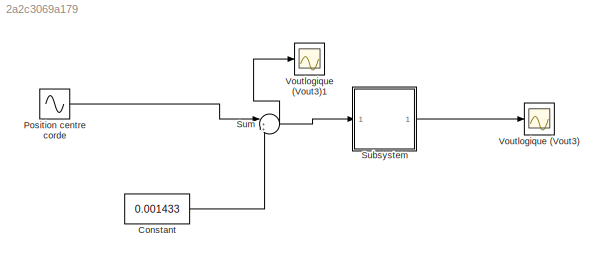
MODEL slx_2a2c3069a179
KIND model
CONFIG AbsTol = auto
CONFIG EnableMultiTasking = off
CONFIG FixedStep = 0.0001
CONFIG MaxStep = auto
CONFIG MinStep = auto
CONFIG RelTol = 1e-3
CONFIG SampleTimeConstraint = Unconstrained
CONFIG Solver = FixedStepAuto
CONFIG SolverName = FixedStepAuto
CONFIG StartTime = 0.0
CONFIG StopTime = 1
BLOCK [Constant] Constant
  Value = 0.001433
BLOCK [Sin] Position centre corde
  Amplitude = 0.0005
  Frequency = 1256
  Ports = [0, 1]
  SampleTime = 0
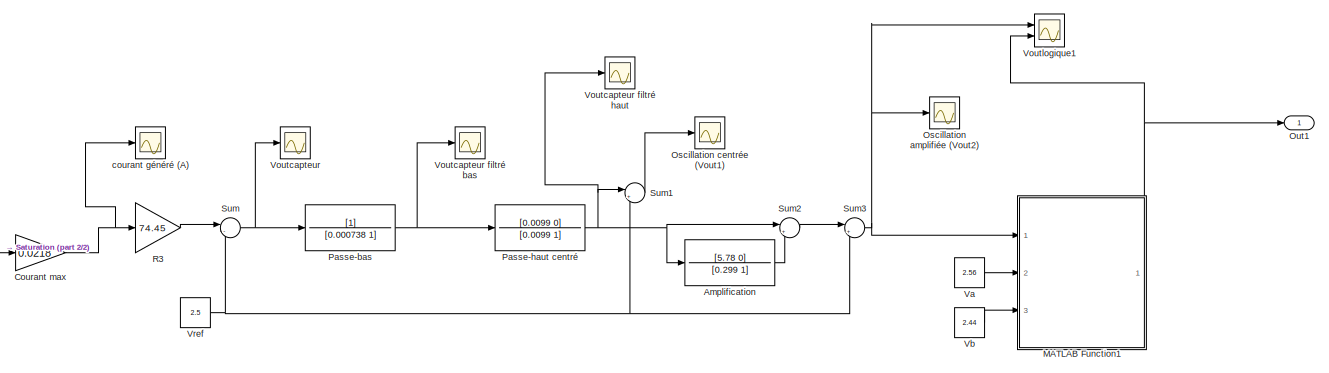
[diagram: Subsystem - part 1/2, most of the canvas]
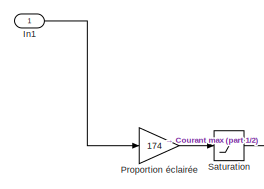
[diagram: Subsystem - part 2/2, middle left region]
BLOCK [SubSystem] Subsystem
  Ports = [1, 1]
  RequestExecContextInheritance = off
BLOCK [TransferFcn] Subsystem/Amplification 
  Denominator = [0.299 1]
  Numerator = [5.78 0]
BLOCK [Gain] Subsystem/Courant max
  Gain = 0.0218
  OutDataTypeStr = Inherit: Inherit via internal rule
  ParamDataTypeStr = Inherit: Inherit via internal rule
  SaturateOnIntegerOverflow = off
BLOCK [Inport] Subsystem/In1
  IconDisplay = Port number
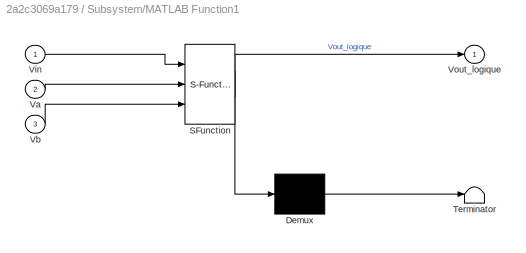
BLOCK [SubSystem] Subsystem/MATLAB Function1
  ErrorFcn = Stateflow.Translate.translate
  PermitHierarchicalResolution = ExplicitOnly
  Ports = [3, 1]
  RequestExecContextInheritance = off
  SFBlockType = MATLAB Function
  TreatAsAtomicUnit = on
BLOCK [Demux] Subsystem/MATLAB Function1/ Demux 
  Outputs = 1
  Ports = [1, 1]
BLOCK [S-Function] Subsystem/MATLAB Function1/ SFunction 
  EnableBusSupport = on
  FunctionName = sf_sfun
  PortCounts = [3 2]
  Ports = [3, 2]
  SFcnIsStateOwnerBlock = off
  SFunctionDeploymentMode = off
  Tag = Stateflow S-Function 1
BLOCK [Terminator] Subsystem/MATLAB Function1/ Terminator 
BLOCK [Inport] Subsystem/MATLAB Function1/Va
  IconDisplay = Port number
  Port = 2
BLOCK [Inport] Subsystem/MATLAB Function1/Vb
  IconDisplay = Port number
  Port = 3
BLOCK [Inport] Subsystem/MATLAB Function1/Vin
  IconDisplay = Port number
BLOCK [Outport] Subsystem/MATLAB Function1/Vout_logique
  IconDisplay = Port number
BLOCK [Scope] Subsystem/Oscillation amplifiée (Vout2) 
  Floating = off
  NumInputPorts = 1
  Ports = [1]
  ScopeSpecificationString = Simulink.scopes.TimeScopeBlockCfg('CurrentConfiguration', extmgr.ConfigurationSet(extmgr.Configuration('Core','General UI',true),extmgr.Configuration('Core','Source UI',true),extmgr.Configuration('Sources','WiredSimulink',true,'DataLoggingVariableName','ScopeData4'),extmgr.Configuration('Visuals','Time Domain',true,'SerializedDisplays',{struct('MinYLimReal','1.62987','MaxYLimReal','2.585','YLabelR...<+1448ch>
BLOCK [Scope] Subsystem/Oscillation centrée (Vout1)
  Floating = off
  NumInputPorts = 1
  Ports = [1]
  ScopeSpecificationString = Simulink.scopes.TimeScopeBlockCfg('CurrentConfiguration', extmgr.ConfigurationSet(extmgr.Configuration('Core','General UI',true),extmgr.Configuration('Core','Source UI',true),extmgr.Configuration('Sources','WiredSimulink',true,'DataLoggingVariableName','ScopeData3'),extmgr.Configuration('Visuals','Time Domain',true,'SerializedDisplays',{struct('MinYLimReal','1.91929','MaxYLimReal','4.7031','YLabel...<+1428ch>
BLOCK [Outport] Subsystem/Out1
  IconDisplay = Port number
BLOCK [TransferFcn] Subsystem/Passe-bas
  Denominator = [0.000738 1]
BLOCK [TransferFcn] Subsystem/Passe-haut centré 
  Denominator = [0.0099 1]
  Numerator = [0.0099 0]
BLOCK [Gain] Subsystem/Proportion éclairée
  Gain = 174
  OutDataTypeStr = Inherit: Inherit via internal rule
  ParamDataTypeStr = Inherit: Inherit via internal rule
  SaturateOnIntegerOverflow = off
BLOCK [Gain] Subsystem/R3
  Gain = 74.45
  OutDataTypeStr = Inherit: Inherit via internal rule
  ParamDataTypeStr = Inherit: Inherit via internal rule
  SaturateOnIntegerOverflow = off
BLOCK [Saturate] Subsystem/Saturation
  InputPortMap = u0
  LowerLimit = 0
  Ports = [1, 1]
  UpperLimit = 0.497
BLOCK [Sum] Subsystem/Sum
  IconShape = round
  InputSameDT = off
  Inputs = |-+
  OutDataTypeStr = Inherit: Inherit via internal rule
  Ports = [2, 1]
  SaturateOnIntegerOverflow = off
BLOCK [Sum] Subsystem/Sum1
  IconShape = round
  InputSameDT = off
  Inputs = |++
  OutDataTypeStr = Inherit: Inherit via internal rule
  Ports = [2, 1]
  SaturateOnIntegerOverflow = off
BLOCK [Sum] Subsystem/Sum2
  IconShape = round
  InputSameDT = off
  Inputs = |++
  OutDataTypeStr = Inherit: Inherit via internal rule
  Ports = [2, 1]
  SaturateOnIntegerOverflow = off
BLOCK [Sum] Subsystem/Sum3
  IconShape = round
  InputSameDT = off
  Inputs = |++
  OutDataTypeStr = Inherit: Inherit via internal rule
  Ports = [2, 1]
  SaturateOnIntegerOverflow = off
BLOCK [Constant] Subsystem/Va 
  Value = 2.56
BLOCK [Constant] Subsystem/Vb
  Value = 2.44
BLOCK [Scope] Subsystem/Voutcapteur 
  Floating = off
  NumInputPorts = 1
  Ports = [1]
  ScopeSpecificationString = Simulink.scopes.TimeScopeBlockCfg('CurrentConfiguration', extmgr.ConfigurationSet(extmgr.Configuration('Core','General UI',true,'ShowMainToolbar',false,'ShowStatusbar',false),extmgr.Configuration('Core','Source UI',true),extmgr.Configuration('Sources','WiredSimulink',true,'DataLoggingVariableName','ScopeData2'),extmgr.Configuration('Visuals','Time Domain',true,'SerializedDisplays',{struct('MinYLim...<+1622ch>
BLOCK [Scope] Subsystem/Voutcapteur filtré bas
  Floating = off
  NumInputPorts = 1
  Ports = [1]
  ScopeSpecificationString = Simulink.scopes.TimeScopeBlockCfg('CurrentConfiguration', extmgr.ConfigurationSet(extmgr.Configuration('Core','General UI',true),extmgr.Configuration('Core','Source UI',true),extmgr.Configuration('Sources','WiredSimulink',true,'DataLoggingVariableName','ScopeData1'),extmgr.Configuration('Visuals','Time Domain',true,'SerializedDisplays',{struct('MinYLimReal','-0.30187','MaxYLimReal','2.71681','YLab...<+1481ch>
BLOCK [Scope] Subsystem/Voutcapteur filtré haut
  Floating = off
  NumInputPorts = 1
  Ports = [1]
  ScopeSpecificationString = Simulink.scopes.TimeScopeBlockCfg('CurrentConfiguration', extmgr.ConfigurationSet(extmgr.Configuration('Core','General UI',true),extmgr.Configuration('Core','Source UI',true),extmgr.Configuration('Sources','WiredSimulink',true,'DataLoggingVariableName','ScopeData2'),extmgr.Configuration('Visuals','Time Domain',true,'SerializedDisplays',{struct('MinYLimReal','-0.0776','MaxYLimReal','0.09565','YLabe...<+1419ch>
BLOCK [Scope] Subsystem/Voutlogique1
  Floating = off
  NumInputPorts = 2
  Ports = [2]
  ScopeSpecificationString = Simulink.scopes.TimeScopeBlockCfg('CurrentConfiguration', extmgr.ConfigurationSet(extmgr.Configuration('Core','General UI',true),extmgr.Configuration('Core','Source UI',true),extmgr.Configuration('Sources','WiredSimulink',true,'DataLoggingVariableName','ScopeData6'),extmgr.Configuration('Visuals','Time Domain',true,'SerializedDisplays',{struct('MinYLimReal','-84.25681','MaxYLimReal','145.08566','Y...<+1823ch>
BLOCK [Constant] Subsystem/Vref 
  Value = 2.5
BLOCK [Scope] Subsystem/courant généré (A) 
  Floating = off
  NumInputPorts = 1
  Ports = [1]
  ScopeSpecificationString = Simulink.scopes.TimeScopeBlockCfg('CurrentConfiguration', extmgr.ConfigurationSet(extmgr.Configuration('Core','General UI',true),extmgr.Configuration('Core','Source UI',true),extmgr.Configuration('Sources','WiredSimulink',true),extmgr.Configuration('Visuals','Time Domain',true,'SerializedDisplays',{struct('MinYLimReal','-0.00135','MaxYLimReal','0.01219','YLabelReal','','MinYLimMag','0.00000','MaxY...<+1547ch>
BLOCK [Sum] Sum
  IconShape = round
  InputSameDT = off
  Inputs = |+++
  OutDataTypeStr = Inherit: Inherit via internal rule
  Ports = [3, 1]
  SaturateOnIntegerOverflow = off
BLOCK [Scope] Voutlogique (Vout3)
  Floating = off
  NumInputPorts = 1
  Ports = [1]
  ScopeSpecificationString = Simulink.scopes.TimeScopeBlockCfg('CurrentConfiguration', extmgr.ConfigurationSet(extmgr.Configuration('Core','General UI',true),extmgr.Configuration('Core','Source UI',true),extmgr.Configuration('Sources','WiredSimulink',true,'DataLoggingVariableName','ScopeData5'),extmgr.Configuration('Visuals','Time Domain',true,'SerializedDisplays',{struct('MinYLimReal','-0.625','MaxYLimReal','5.625','YLabelRe...<+1453ch>
BLOCK [Scope] Voutlogique (Vout3)1
  Floating = off
  NumInputPorts = 1
  Ports = [1]
  ScopeSpecificationString = Simulink.scopes.TimeScopeBlockCfg('CurrentConfiguration', extmgr.ConfigurationSet(extmgr.Configuration('Core','General UI',true),extmgr.Configuration('Core','Source UI',true),extmgr.Configuration('Sources','WiredSimulink',true,'DataLoggingVariableName','ScopeData1'),extmgr.Configuration('Visuals','Time Domain',true,'SerializedDisplays',{struct('MinYLimReal','-0.01277','MaxYLimReal','0.01657','YLab...<+1459ch>
LINE Constant:1 -> Sum:3
LINE Position centre corde:1 -> Sum:1
LINE Subsystem/Amplification :1 -> Subsystem/Sum2:2
NET Subsystem/Courant max:1 -> Subsystem/R3:1, Subsystem/courant généré (A) :1
LINE Subsystem/In1:1 -> Subsystem/Proportion éclairée:1
NET Subsystem/MATLAB Function1:1 -> Subsystem/Out1:1, Subsystem/Voutlogique1:2
NET Subsystem/Passe-bas:1 -> Subsystem/Passe-haut centré :1, Subsystem/Voutcapteur filtré bas:1
NET Subsystem/Passe-haut centré :1 -> Subsystem/Amplification :1, Subsystem/Sum1:1, Subsystem/Sum2:1, Subsystem/Voutcapteur filtré haut:1
LINE Subsystem/Proportion éclairée:1 -> Subsystem/Saturation:1
LINE Subsystem/R3:1 -> Subsystem/Sum:1
LINE Subsystem/Saturation:1 -> Subsystem/Courant max:1
LINE Subsystem/Sum1:1 -> Subsystem/Oscillation centrée (Vout1):1
LINE Subsystem/Sum2:1 -> Subsystem/Sum3:1
NET Subsystem/Sum3:1 -> Subsystem/MATLAB Function1:1, Subsystem/Oscillation amplifiée (Vout2) :1, Subsystem/Voutlogique1:1
NET Subsystem/Sum:1 -> Subsystem/Passe-bas:1, Subsystem/Voutcapteur :1
LINE Subsystem/Va :1 -> Subsystem/MATLAB Function1:2
LINE Subsystem/Vb:1 -> Subsystem/MATLAB Function1:3
NET Subsystem/Vref :1 -> Subsystem/Sum1:2, Subsystem/Sum3:2, Subsystem/Sum:2
LINE Subsystem:1 -> Voutlogique (Vout3):1
NET Sum:1 -> Subsystem:1, Voutlogique (Vout3)1:1
note: NET lines group one-source signal fan-out (src -> all destinations, sorted); 1:1 wires keep LINE
CHART Subsystem/MATLAB Function1 states=1 transitions=1
  STATE_LABEL 'eML_blk_kernel()'
  STATE_LABEL 'SCRIPT:\nfunction Vout_logique = fcn(Vin, Va, Vb)\n\nVout_logique = 0;\nif Vin > Va && Vout_logique == 5\n    Vout_logique = 0;\nend\nif Vin < Vb && Vout_logique == 0\n    Vout_logique = 5;\nend\nend\n \n'
